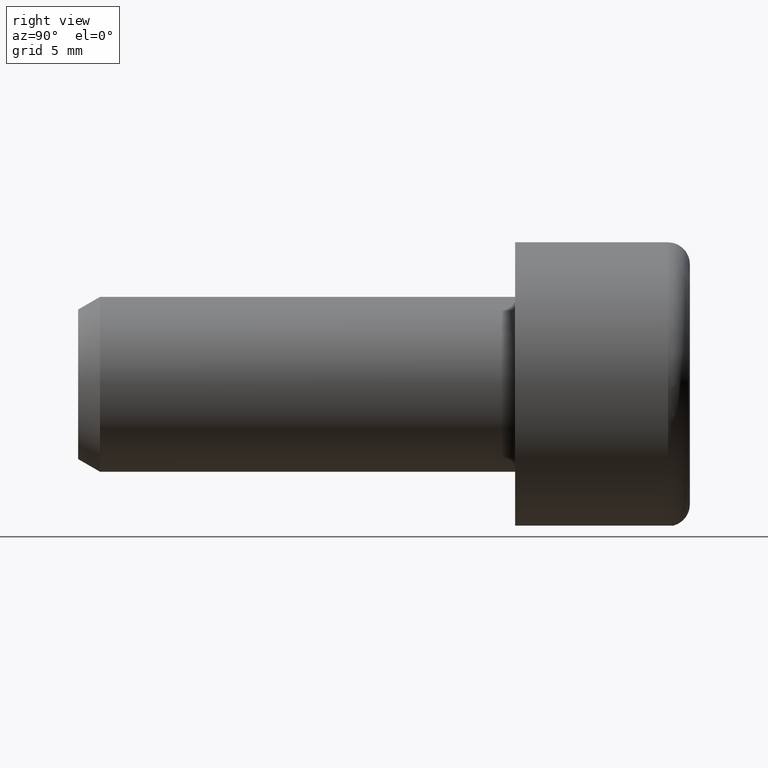
[diagram: clean part render]
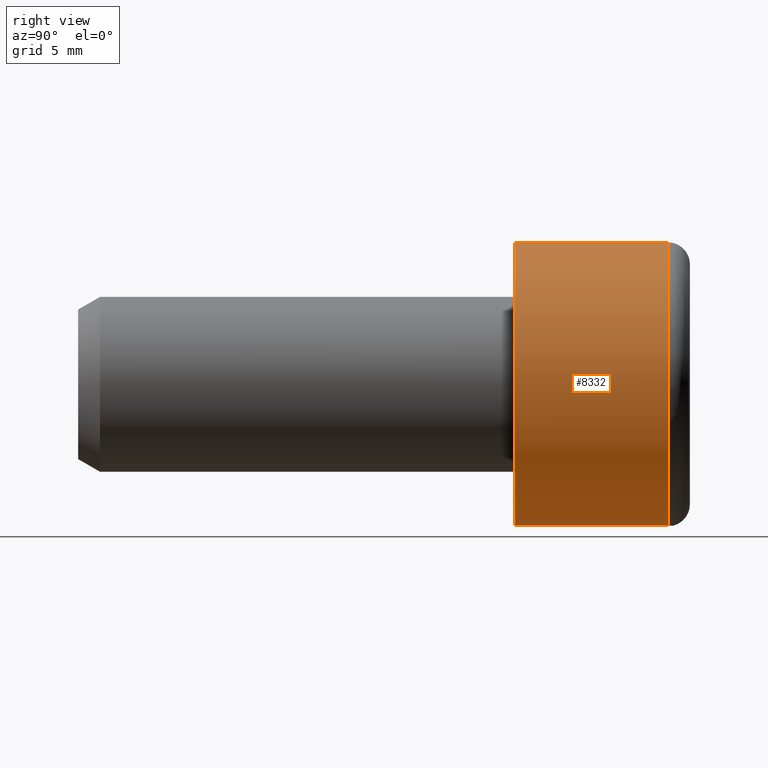
[diagram: same view with one face highlighted and labeled with its STEP entity id]
A machine part, right view. The second image highlights one B-rep face of the part: STEP entity #8332.
In plain terms, the highlighted cylindrical surface (bore or boss wall) has radius 6.5 mm, axis along (-0, -1, -0).
Its self-contained STEP definition (entity closure, byte-faithful):
#456 = CIRCLE ( 'NONE', #12378, 6.500000000000000900 ) ;
#697 = CYLINDRICAL_SURFACE ( 'NONE', #2264, 6.500000000000000900 ) ;
#1419 = EDGE_LOOP ( 'NONE', ( #7375 ) ) ;
#1487 = AXIS2_PLACEMENT_3D ( 'NONE', #6269, #16950, #2237 ) ;
#1842 = DIRECTION ( 'NONE',  ( 0.0000000000000000000, 0.0000000000000000000, 1.000000000000000000 ) ) ;
#2237 = DIRECTION ( 'NONE',  ( 0.0000000000000000000, 0.0000000000000000000, 1.000000000000000000 ) ) ;
#2264 = AXIS2_PLACEMENT_3D ( 'NONE', #16781, #4171, #13709 ) ;
#4171 = DIRECTION ( 'NONE',  ( -0.0000000000000000000, -1.000000000000000000, -0.0000000000000000000 ) ) ;
#4409 = CARTESIAN_POINT ( 'NONE',  ( 0.0000000000000000000, 7.000000000000000000, 6.500000000000000900 ) ) ;
#6191 = EDGE_CURVE ( 'NONE', #13859, #13859, #12027, .T. ) ;
#6269 = CARTESIAN_POINT ( 'NONE',  ( 0.0000000000000000000, 0.0000000000000000000, 0.0000000000000000000 ) ) ;
#7375 = ORIENTED_EDGE ( 'NONE', *, *, #6191, .T. ) ;
#8332 = ADVANCED_FACE ( 'NONE', ( #15083, #12198 ), #697, .T. ) ;
#9893 = VERTEX_POINT ( 'NONE', #4409 ) ;
#11460 = CARTESIAN_POINT ( 'NONE',  ( 0.0000000000000000000, 0.0000000000000000000, 6.500000000000000900 ) ) ;
#11900 = EDGE_CURVE ( 'NONE', #9893, #9893, #456, .T. ) ;
#12027 = CIRCLE ( 'NONE', #1487, 6.500000000000000900 ) ;
#12198 = FACE_OUTER_BOUND ( 'NONE', #1419, .T. ) ;
#12348 = CARTESIAN_POINT ( 'NONE',  ( 0.0000000000000000000, 7.000000000000000000, 0.0000000000000000000 ) ) ;
#12378 = AXIS2_PLACEMENT_3D ( 'NONE', #12348, #14993, #1842 ) ;
#13132 = ORIENTED_EDGE ( 'NONE', *, *, #11900, .T. ) ;
#13709 = DIRECTION ( 'NONE',  ( 0.0000000000000000000, 0.0000000000000000000, -1.000000000000000000 ) ) ;
#13859 = VERTEX_POINT ( 'NONE', #11460 ) ;
#14071 = EDGE_LOOP ( 'NONE', ( #13132 ) ) ;
#14993 = DIRECTION ( 'NONE',  ( -0.0000000000000000000, -1.000000000000000000, -0.0000000000000000000 ) ) ;
#15083 = FACE_OUTER_BOUND ( 'NONE', #14071, .T. ) ;
#16781 = CARTESIAN_POINT ( 'NONE',  ( 0.0000000000000000000, 8.000000000000000000, 0.0000000000000000000 ) ) ;
#16950 = DIRECTION ( 'NONE',  ( 0.0000000000000000000, 1.000000000000000000, 0.0000000000000000000 ) ) ;